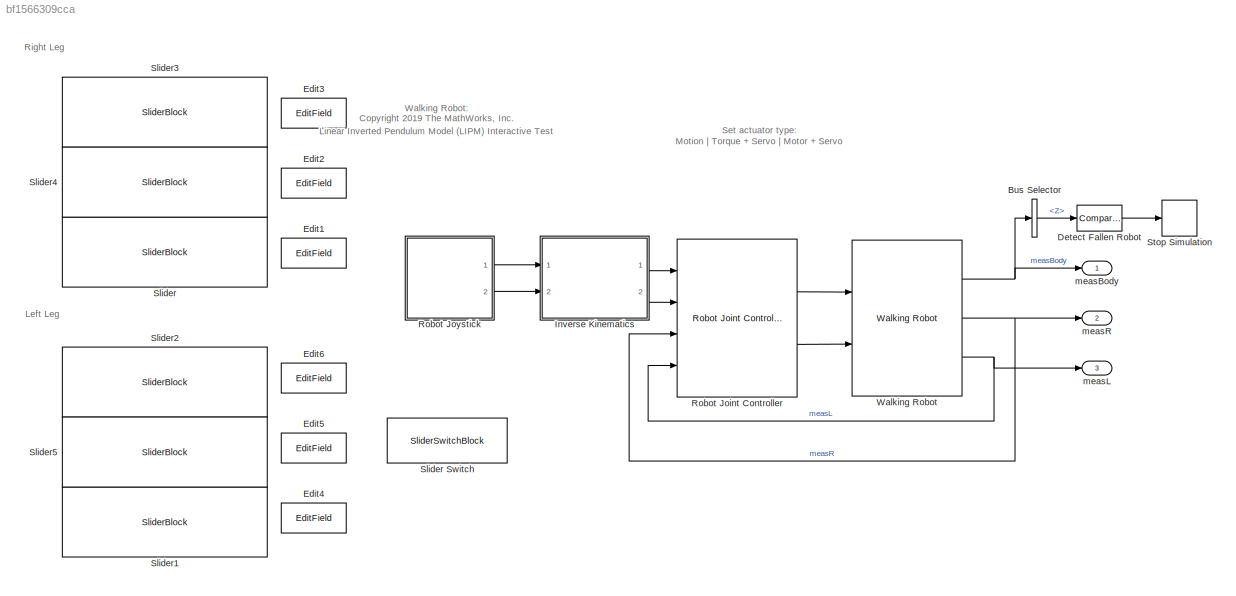
MODEL slx_bf1566309cca
KIND model
CONFIG AbsTol = auto
CONFIG EnableMultiTasking = off
CONFIG FixedStep = auto
CONFIG MaxStep = auto
CONFIG MinStep = auto
CONFIG PreLoadFcn = robotParameters\nload('defaultsimulationinputs.mat') 
CONFIG RelTol = 1e-3
CONFIG SampleTimeConstraint = Unconstrained
CONFIG Solver = VariableStepAuto
CONFIG SolverName = VariableStepAuto
CONFIG StartTime = 0.0
CONFIG StopTime = 10.0
BLOCK [BusSelector] Bus Selector
  OutputAsBus = off
  OutputSignals = Z
  Ports = [1, 1]
BLOCK [Reference] Detect Fallen Robot  REF=simulink/Logic and Bit
Operations/Compare
To Constant
  Ports = [1, 1]
  SourceBlock = simulink/Logic and Bit\nOperations/Compare\nTo Constant
  SourceProductBaseCode = SL
  SourceProductName = Simulink
  SourceType = Compare To Constant
BLOCK [EditField] Edit1
  Alignment = Center
  LabelPosition = Hide
  ShowInitialText = on
BLOCK [EditField] Edit2
  Alignment = Center
  LabelPosition = Hide
  ShowInitialText = on
BLOCK [EditField] Edit3
  Alignment = Center
  LabelPosition = Hide
  ShowInitialText = on
BLOCK [EditField] Edit4
  Alignment = Center
  LabelPosition = Hide
  ShowInitialText = on
BLOCK [EditField] Edit5
  Alignment = Center
  LabelPosition = Hide
  ShowInitialText = on
BLOCK [EditField] Edit6
  Alignment = Center
  LabelPosition = Hide
  ShowInitialText = on
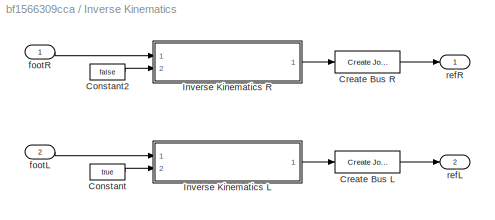
BLOCK [SubSystem] Inverse Kinematics
  Ports = [2, 2]
  RequestExecContextInheritance = off
BLOCK [Constant] Inverse Kinematics/Constant
  Value = true
BLOCK [Constant] Inverse Kinematics/Constant2
  Value = false
BLOCK [Reference] Inverse Kinematics/Create Bus L  REF=walkingRobotUtils/Create Joint Angle Bus
  Ports = [1, 1]
  SourceBlock = walkingRobotUtils/Create Joint Angle Bus
  SourceType = SubSystem
BLOCK [Reference] Inverse Kinematics/Create Bus R  REF=walkingRobotUtils/Create Joint Angle Bus
  Ports = [1, 1]
  SourceBlock = walkingRobotUtils/Create Joint Angle Bus
  SourceType = SubSystem
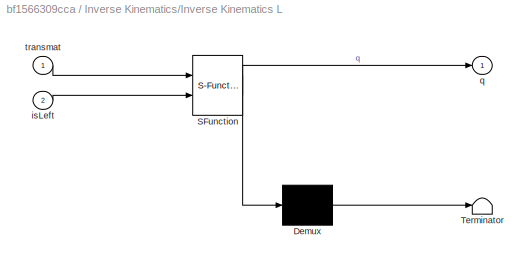
BLOCK [SubSystem] Inverse Kinematics/Inverse Kinematics L
  ErrorFcn = Stateflow.Translate.translate
  PermitHierarchicalResolution = ExplicitOnly
  Ports = [2, 1]
  RequestExecContextInheritance = off
  SFBlockType = MATLAB Function
  TreatAsAtomicUnit = on
BLOCK [Demux] Inverse Kinematics/Inverse Kinematics L/ Demux 
  Outputs = 1
  Ports = [1, 1]
BLOCK [S-Function] Inverse Kinematics/Inverse Kinematics L/ SFunction 
  EnableBusSupport = on
  FunctionName = sf_sfun
  PortCounts = [2 2]
  Ports = [2, 2]
  SFcnIsStateOwnerBlock = off
  SFunctionDeploymentMode = off
  Tag = Stateflow S-Function 1
BLOCK [Terminator] Inverse Kinematics/Inverse Kinematics L/ Terminator 
BLOCK [Inport] Inverse Kinematics/Inverse Kinematics L/isLeft
  IconDisplay = Port number
  Port = 2
BLOCK [Outport] Inverse Kinematics/Inverse Kinematics L/q
  IconDisplay = Port number
BLOCK [Inport] Inverse Kinematics/Inverse Kinematics L/transmat
  IconDisplay = Port number
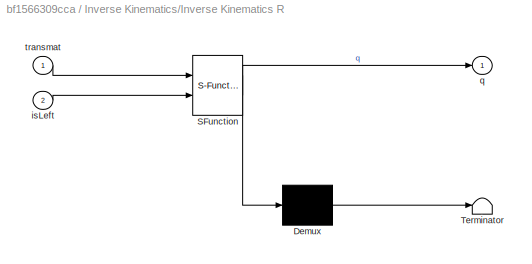
BLOCK [SubSystem] Inverse Kinematics/Inverse Kinematics R
  ErrorFcn = Stateflow.Translate.translate
  PermitHierarchicalResolution = ExplicitOnly
  Ports = [2, 1]
  RequestExecContextInheritance = off
  SFBlockType = MATLAB Function
  TreatAsAtomicUnit = on
BLOCK [Demux] Inverse Kinematics/Inverse Kinematics R/ Demux 
  Outputs = 1
  Ports = [1, 1]
BLOCK [S-Function] Inverse Kinematics/Inverse Kinematics R/ SFunction 
  EnableBusSupport = on
  FunctionName = sf_sfun
  PortCounts = [2 2]
  Ports = [2, 2]
  SFcnIsStateOwnerBlock = off
  SFunctionDeploymentMode = off
  Tag = Stateflow S-Function 2
BLOCK [Terminator] Inverse Kinematics/Inverse Kinematics R/ Terminator 
BLOCK [Inport] Inverse Kinematics/Inverse Kinematics R/isLeft
  IconDisplay = Port number
  Port = 2
BLOCK [Outport] Inverse Kinematics/Inverse Kinematics R/q
  IconDisplay = Port number
BLOCK [Inport] Inverse Kinematics/Inverse Kinematics R/transmat
  IconDisplay = Port number
BLOCK [Inport] Inverse Kinematics/footL
  IconDisplay = Port number
  Port = 2
BLOCK [Inport] Inverse Kinematics/footR
  IconDisplay = Port number
BLOCK [Outport] Inverse Kinematics/refL
  IconDisplay = Port number
  Port = 2
BLOCK [Outport] Inverse Kinematics/refR
  IconDisplay = Port number
BLOCK [Reference] Robot Joint Controller  REF=walkingRobotUtils/Robot Joint Controller
  Ports = [4, 2]
  SourceBlock = walkingRobotUtils/Robot Joint Controller
  SourceType = SubSystem
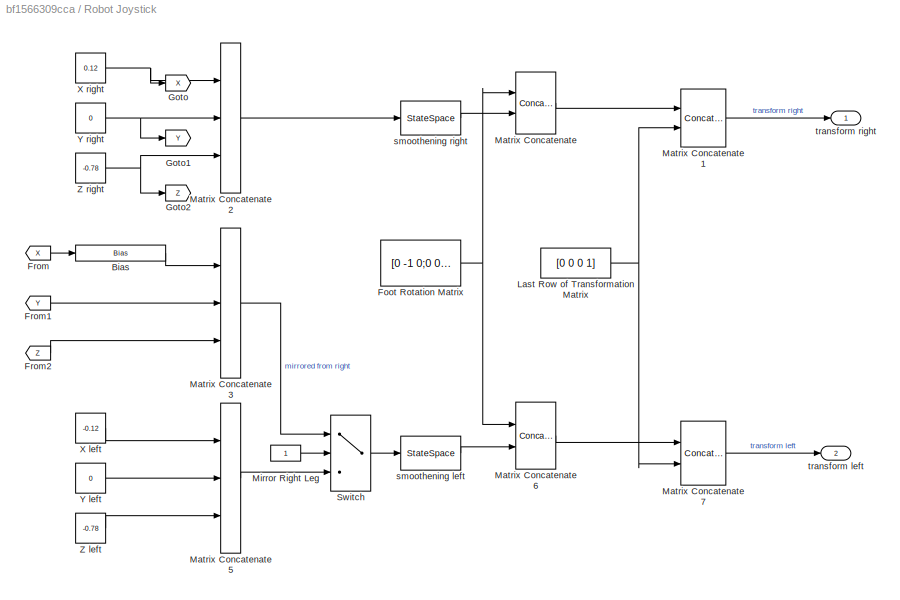
BLOCK [SubSystem] Robot Joystick
  Ports = [0, 2]
  RequestExecContextInheritance = off
BLOCK [Bias] Robot Joystick/Bias
  Bias = -torso_width
  SaturateOnIntegerOverflow = off
BLOCK [Constant] Robot Joystick/Foot Rotation Matrix
  Value = [0 -1 0;0 0 1;-1 0 0]
BLOCK [From] Robot Joystick/From
  GotoTag = X
BLOCK [From] Robot Joystick/From1
  GotoTag = Y
BLOCK [From] Robot Joystick/From2
  GotoTag = Z
BLOCK [Goto] Robot Joystick/Goto
  GotoTag = X
BLOCK [Goto] Robot Joystick/Goto1
  GotoTag = Y
BLOCK [Goto] Robot Joystick/Goto2
  GotoTag = Z
BLOCK [Constant] Robot Joystick/Last Row of Transformation Matrix
  Value = [0 0  0 1]
  VectorParams1D = off
BLOCK [Concatenate] Robot Joystick/Matrix Concatenate
  ConcatenateDimension = 2
  Mode = Multidimensional array
  Ports = [2, 1]
BLOCK [Concatenate] Robot Joystick/Matrix Concatenate1
  Mode = Multidimensional array
  Ports = [2, 1]
BLOCK [Concatenate] Robot Joystick/Matrix Concatenate2
  Mode = Multidimensional array
  NumInputs = 3
  Ports = [3, 1]
BLOCK [Concatenate] Robot Joystick/Matrix Concatenate3
  Mode = Multidimensional array
  NumInputs = 3
  Ports = [3, 1]
BLOCK [Concatenate] Robot Joystick/Matrix Concatenate5
  Mode = Multidimensional array
  NumInputs = 3
  Ports = [3, 1]
BLOCK [Concatenate] Robot Joystick/Matrix Concatenate6
  ConcatenateDimension = 2
  Mode = Multidimensional array
  Ports = [2, 1]
BLOCK [Concatenate] Robot Joystick/Matrix Concatenate7
  Mode = Multidimensional array
  Ports = [2, 1]
BLOCK [Constant] Robot Joystick/Mirror Right Leg
  InitFcn = set_param(gcb, 'Value', '1');
BLOCK [Switch] Robot Joystick/Switch
  Criteria = u2 > Threshold
  InputSameDT = off
  SaturateOnIntegerOverflow = off
BLOCK [Constant] Robot Joystick/X left
  InitFcn = set_param(gcb, 'Value', '-0.12');
  Value = -0.12
BLOCK [Constant] Robot Joystick/X right
  InitFcn = set_param(gcb, 'Value', '0.12');
  Value = 0.12
BLOCK [Constant] Robot Joystick/Y left
  InitFcn = set_param(gcb, 'Value', '0');
  Value = 0
BLOCK [Constant] Robot Joystick/Y right
  InitFcn = set_param(gcb, 'Value', '0');
  Value = 0
BLOCK [Constant] Robot Joystick/Z left
  InitFcn = set_param(gcb, 'Value', '-0.78');
  Value = -0.78
BLOCK [Constant] Robot Joystick/Z right
  InitFcn = set_param(gcb, 'Value', '-0.78');
  Value = -0.78
BLOCK [StateSpace] Robot Joystick/smoothening left
  A = -1*eye(3)
  B = eye(3)
  C = eye(3)
  D = zeros(3)
  InitialCondition = [-0.12 0 -0.78]
  Ports = [1, 1]
BLOCK [StateSpace] Robot Joystick/smoothening right
  A = -1*eye(3)
  B = eye(3)
  C = eye(3)
  D = zeros(3)
  InitialCondition = [0.12 0 -0.78]
  Ports = [1, 1]
BLOCK [Outport] Robot Joystick/transform left
  IconDisplay = Port number
  Port = 2
BLOCK [Outport] Robot Joystick/transform right
  IconDisplay = Port number
BLOCK [SliderBlock] Slider
  ScaleMax = -0.3
  ScaleMin = -0.8
BLOCK [SliderSwitchBlock] Slider Switch
BLOCK [SliderBlock] Slider1
  ScaleMax = -0.3
  ScaleMin = -0.8
BLOCK [SliderBlock] Slider2
  ScaleMax = 0.3
  ScaleMin = -0.3
BLOCK [SliderBlock] Slider3
  ScaleMax = 0.3
  ScaleMin = -0.3
BLOCK [SliderBlock] Slider4
  ScaleMax = 0.3
  ScaleMin = -0.3
BLOCK [SliderBlock] Slider5
  ScaleMax = 0.3
  ScaleMin = -0.3
BLOCK [Stop] Stop Simulation
BLOCK [Reference] Walking Robot  REF=walkingRobotUtils/Walking Robot
  Ports = [2, 3]
  SourceBlock = walkingRobotUtils/Walking Robot
  SourceType = SubSystem
BLOCK [Outport] measBody
  IconDisplay = Port number
  VectorParamsAs1DForOutWhenUnconnected = off
BLOCK [Outport] measL
  IconDisplay = Port number
  Port = 3
  VectorParamsAs1DForOutWhenUnconnected = off
BLOCK [Outport] measR
  IconDisplay = Port number
  Port = 2
  VectorParamsAs1DForOutWhenUnconnected = off
ANNOTATION (root): Set actuator type: Motion | Torque + Servo | Motor + Servo
ANNOTATION (root): Walking Robot: Linear Inverted Pendulum Model (LIPM) Interactive Test <copyright redacted>
ANNOTATION (root): Left Leg
ANNOTATION (root): Right Leg
LINE Bus Selector:1 -> Detect Fallen Robot:1
LINE Detect Fallen Robot:1 -> Stop Simulation:1
LINE Inverse Kinematics/Constant2:1 -> Inverse Kinematics/Inverse Kinematics R:2
LINE Inverse Kinematics/Constant:1 -> Inverse Kinematics/Inverse Kinematics L:2
LINE Inverse Kinematics/Create Bus L:1 -> Inverse Kinematics/refL:1
LINE Inverse Kinematics/Create Bus R:1 -> Inverse Kinematics/refR:1
LINE Inverse Kinematics/Inverse Kinematics L:1 -> Inverse Kinematics/Create Bus L:1
LINE Inverse Kinematics/Inverse Kinematics R:1 -> Inverse Kinematics/Create Bus R:1
LINE Inverse Kinematics/footL:1 -> Inverse Kinematics/Inverse Kinematics L:1
LINE Inverse Kinematics/footR:1 -> Inverse Kinematics/Inverse Kinematics R:1
LINE Inverse Kinematics:1 -> Robot Joint Controller:1
LINE Inverse Kinematics:2 -> Robot Joint Controller:2
LINE Robot Joint Controller:1 -> Walking Robot:1
LINE Robot Joint Controller:2 -> Walking Robot:2
LINE Robot Joystick/Bias:1 -> Robot Joystick/Matrix Concatenate3:1
NET Robot Joystick/Foot Rotation Matrix:1 -> Robot Joystick/Matrix Concatenate6:1, Robot Joystick/Matrix Concatenate:1
LINE Robot Joystick/From1:1 -> Robot Joystick/Matrix Concatenate3:2
LINE Robot Joystick/From2:1 -> Robot Joystick/Matrix Concatenate3:3
LINE Robot Joystick/From:1 -> Robot Joystick/Bias:1
NET Robot Joystick/Last Row of Transformation Matrix:1 -> Robot Joystick/Matrix Concatenate1:2, Robot Joystick/Matrix Concatenate7:2
LINE Robot Joystick/Matrix Concatenate1:1 -> Robot Joystick/transform right:1
LINE Robot Joystick/Matrix Concatenate2:1 -> Robot Joystick/smoothening right:1
LINE Robot Joystick/Matrix Concatenate3:1 -> Robot Joystick/Switch:1
LINE Robot Joystick/Matrix Concatenate5:1 -> Robot Joystick/Switch:3
LINE Robot Joystick/Matrix Concatenate6:1 -> Robot Joystick/Matrix Concatenate7:1
LINE Robot Joystick/Matrix Concatenate7:1 -> Robot Joystick/transform left:1
LINE Robot Joystick/Matrix Concatenate:1 -> Robot Joystick/Matrix Concatenate1:1
LINE Robot Joystick/Mirror Right Leg:1 -> Robot Joystick/Switch:2
LINE Robot Joystick/Switch:1 -> Robot Joystick/smoothening left:1
LINE Robot Joystick/X left:1 -> Robot Joystick/Matrix Concatenate5:1
NET Robot Joystick/X right:1 -> Robot Joystick/Goto:1, Robot Joystick/Matrix Concatenate2:1
LINE Robot Joystick/Y left:1 -> Robot Joystick/Matrix Concatenate5:2
NET Robot Joystick/Y right:1 -> Robot Joystick/Goto1:1, Robot Joystick/Matrix Concatenate2:2
LINE Robot Joystick/Z left:1 -> Robot Joystick/Matrix Concatenate5:3
NET Robot Joystick/Z right:1 -> Robot Joystick/Goto2:1, Robot Joystick/Matrix Concatenate2:3
LINE Robot Joystick/smoothening left:1 -> Robot Joystick/Matrix Concatenate6:2
LINE Robot Joystick/smoothening right:1 -> Robot Joystick/Matrix Concatenate:2
LINE Robot Joystick:1 -> Inverse Kinematics:1
LINE Robot Joystick:2 -> Inverse Kinematics:2
NET Walking Robot:1 -> Bus Selector:1, measBody:1
NET Walking Robot:2 -> Robot Joint Controller:3, measR:1
NET Walking Robot:3 -> Robot Joint Controller:4, measL:1
note: NET lines group one-source signal fan-out (src -> all destinations, sorted); 1:1 wires keep LINE
CHART Inverse Kinematics/Inverse Kinematics L states=1 transitions=1
  STATE_LABEL 'eML_blk_kernel()'
  STATE_LABEL 'SCRIPT:\nfunction q = inverseKinematics(transmat, isLeft)\nq = invKinBody2Foot(transmat, isLeft); \n\n'
CHART Inverse Kinematics/Inverse Kinematics R states=1 transitions=1
  STATE_LABEL 'eML_blk_kernel()'
  STATE_LABEL 'SCRIPT:\nfunction q = inverseKinematics(transmat, isLeft)\nq = invKinBody2Foot(transmat, isLeft); \n\n'
